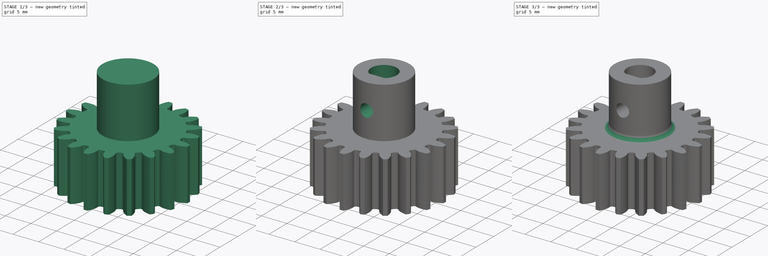
[diagram: build sequence overview — one tinted view per stage of 3, left to right]
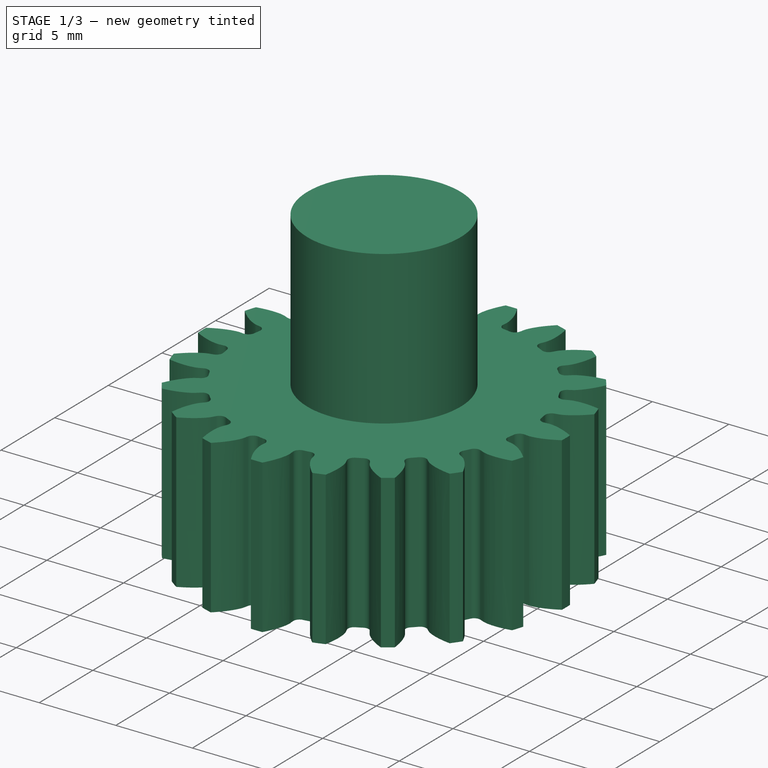
[diagram: stage 1 of 3 — iso view after this stage's code; geometry added in this stage tinted green]
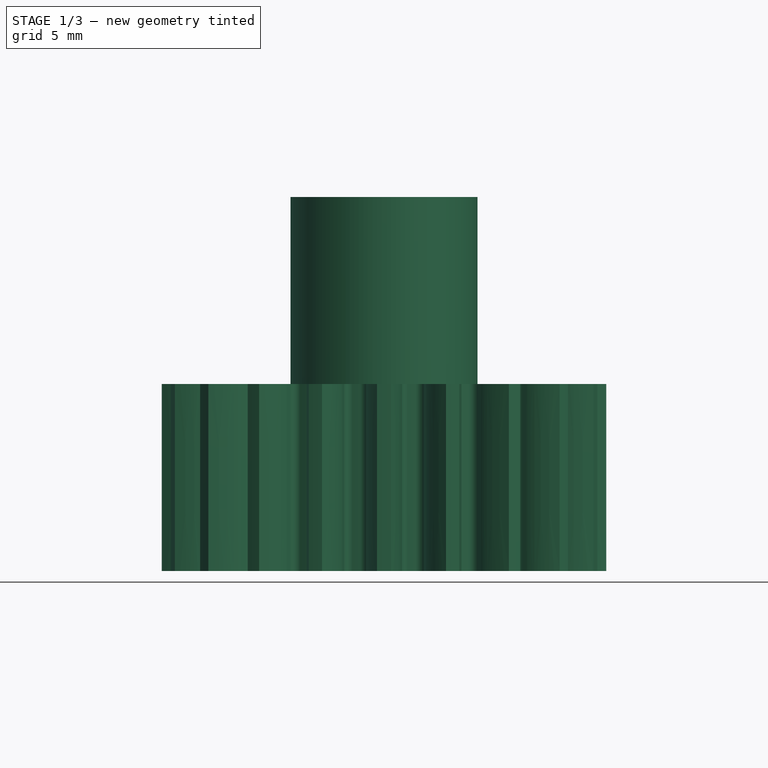
[diagram: stage 1 of 3 — front view after this stage's code; geometry added in this stage tinted green]
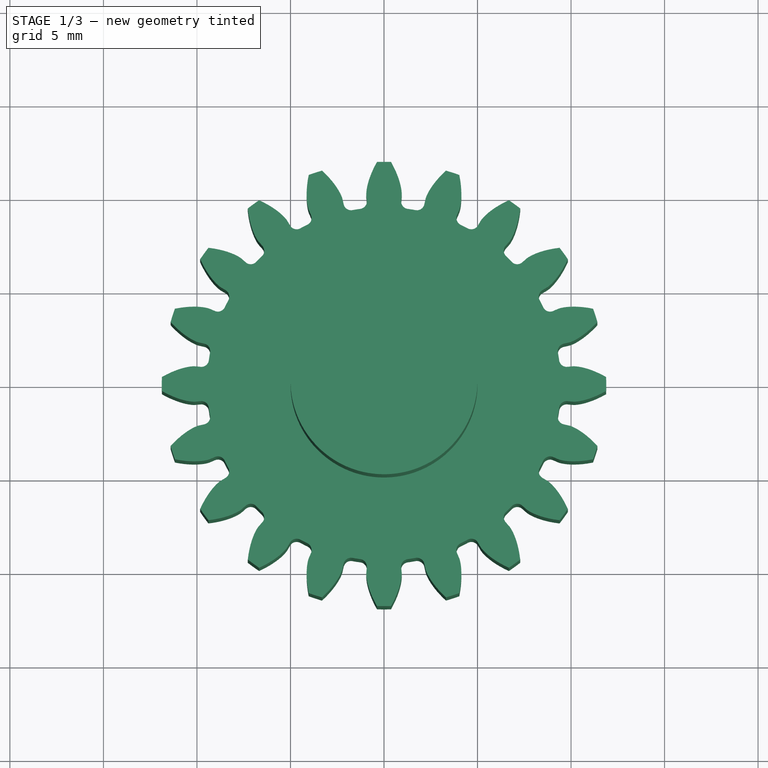
[diagram: stage 1 of 3 — top view after this stage's code; geometry added in this stage tinted green]
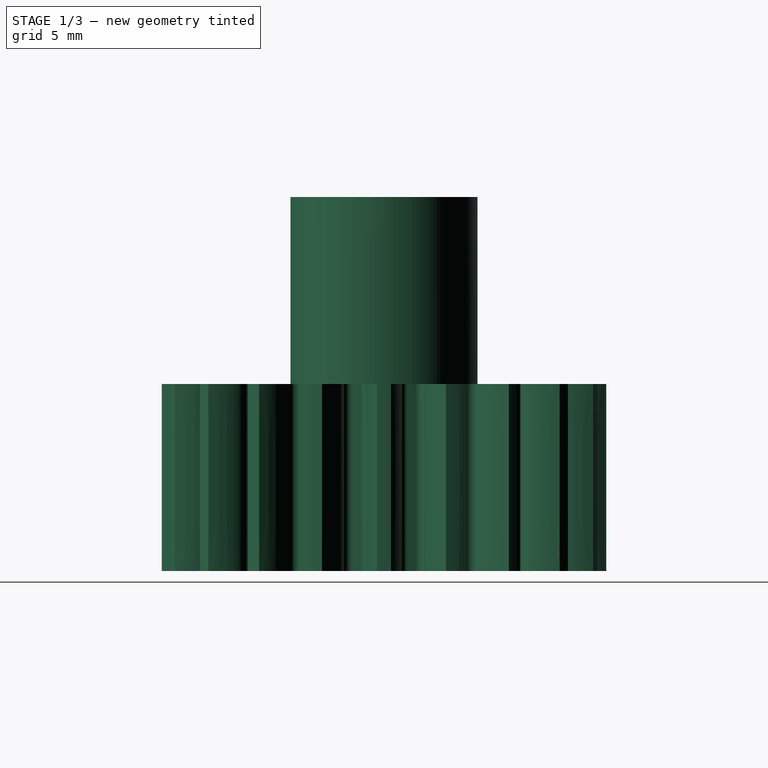
[diagram: stage 1 of 3 — right view after this stage's code; geometry added in this stage tinted green]
FCSTD DOCUMENT  (FreeCAD 0.19R18353 (Git))
Label: GearWheel_20_001
License: CreativeCommons Attribution
LicenseURL: http://creativecommons.org/licenses/by/4.0/
objects: Sketcher::SketchObject×4, PartDesign::Pocket×3, PartDesign::Pad×2, Part::Part2DObjectPython×1, PartDesign::Fillet×1, PartDesign::Body×1, App::MeasureDistance×1
note: 17 computed .brp shape members not serialized (recipe doc carries the construction recipe); baked Part::Feature solids carry a one-line shape summary decoded from their .brp

FEATURE [Part::Part2DObjectPython] InvoluteGear  # Draft 2D object (typed FeaturePython)
  ExternalGear = true
  HighPrecision = true
  Modules = 1.08
  NumberOfTeeth = 20
  PressureAngle = 20
FEATURE [PartDesign::Pad] Pad
  Length = 10
  Length2 = 100
  Profile = -> InvoluteGear
  Refine = true
  Reversed = true
  Type = 0
FEATURE [Sketcher::SketchObject] Sketch
  MapMode = 5
  Support = -> [XY_Plane]
  expr: Constraints[5] = 5 / 2 - 5 / 10
  sketch-geometry (3):
    g0: ArcOfCircle [constr] CenterX=0 CenterY=0 CenterZ=0 NormalX=0 NormalY=0 NormalZ=1 AngleXU=0 Radius=2.5 StartAngle=5.35589 EndAngle=10.3521
    g1: LineSegment [constr] StartX=-1.5 StartY=-2 StartZ=0 EndX=1.5 EndY=-2 EndZ=0
    g2: Circle CenterX=0 CenterY=0 CenterZ=0 NormalX=0 NormalY=0 NormalZ=1 AngleXU=0 Radius=5
  constraints (8):
    c: Coincident(g0,g-1)
    c: Coincident(g1,g0)
    c: Coincident(g1,g0)
    c: Horizontal(g1)
    c: Diameter(g0) = 5
    c: DistanceY(g0,g0) = 2
    c: Diameter(g2) = 10
    c: Coincident(g2,g-1)
FEATURE [PartDesign::Pad] Pad001
  BaseFeature = -> Pad
  Length = 10
  Length2 = 100
  Profile = -> Sketch
  Refine = true
  Type = 0
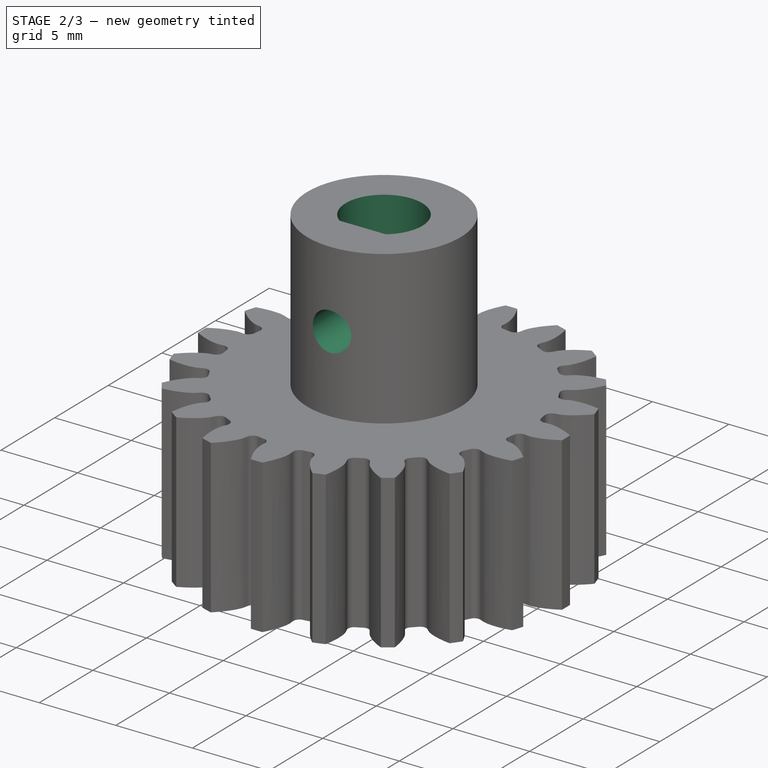
[diagram: stage 2 of 3 — iso view after this stage's code; geometry added in this stage tinted green]
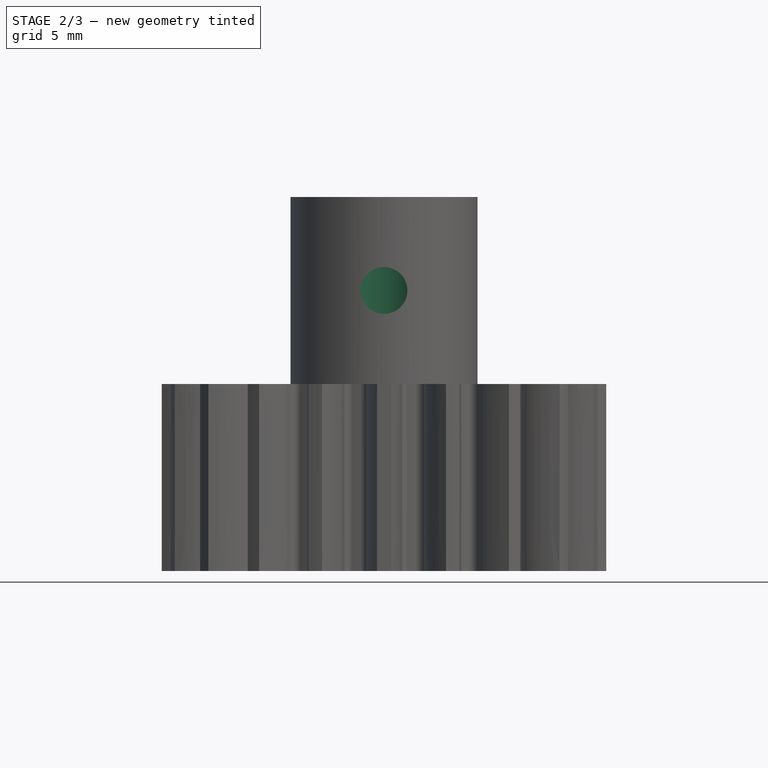
[diagram: stage 2 of 3 — front view after this stage's code; geometry added in this stage tinted green]
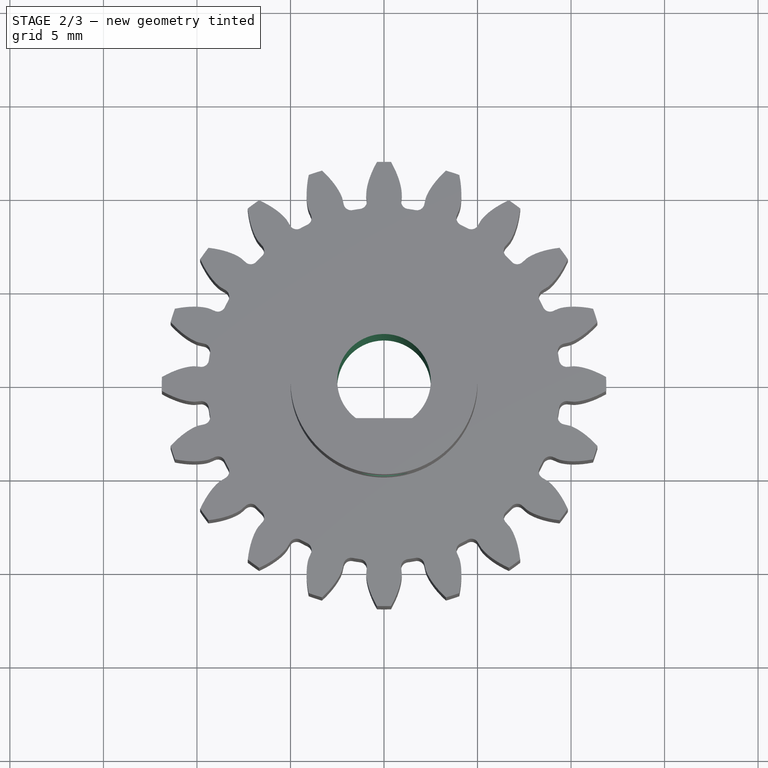
[diagram: stage 2 of 3 — top view after this stage's code; geometry added in this stage tinted green]
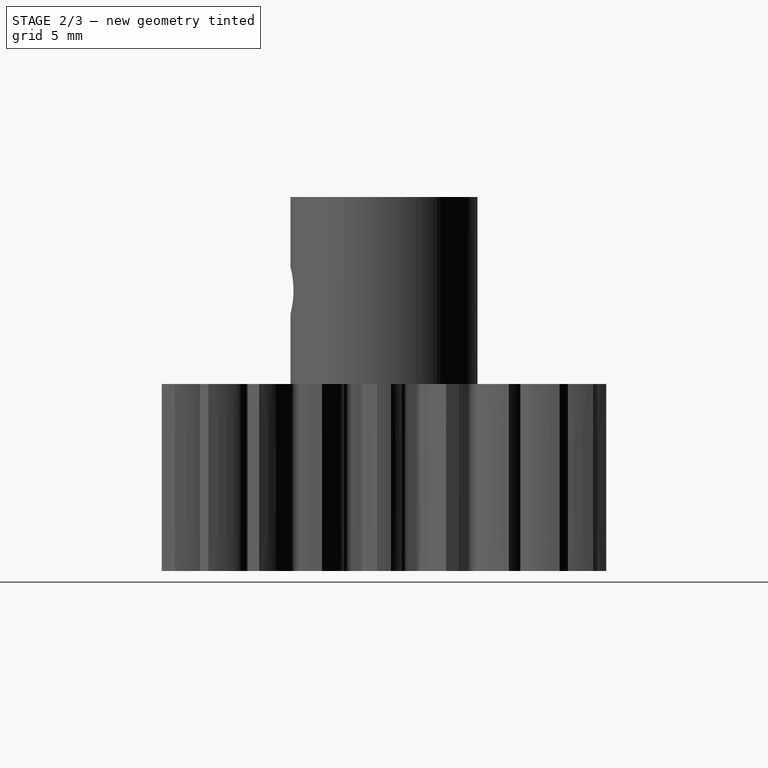
[diagram: stage 2 of 3 — right view after this stage's code; geometry added in this stage tinted green]
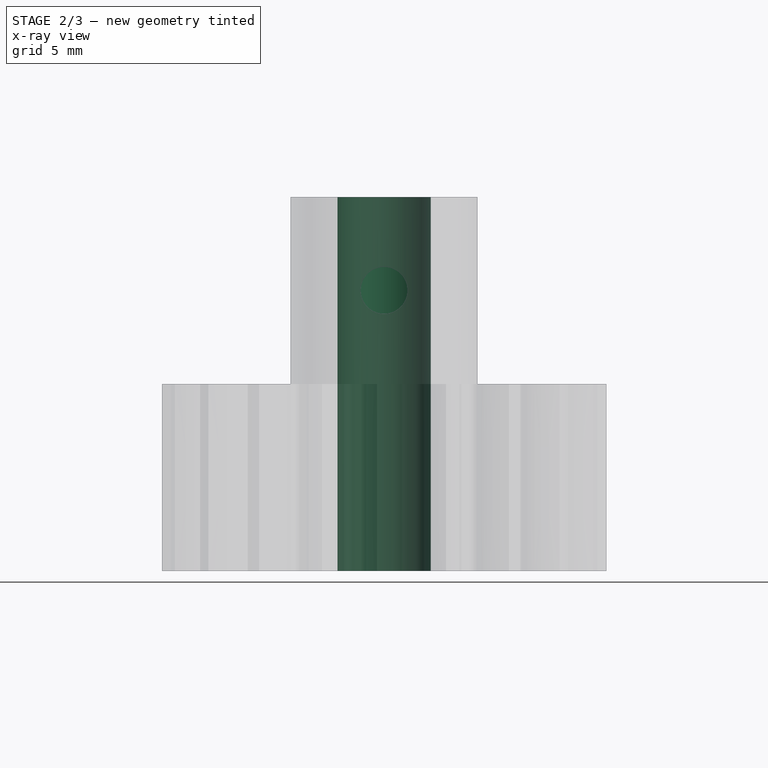
[diagram: stage 2 of 3 — x-ray composite at the front view; earlier geometry ghosted, this stage's added geometry solid]
FEATURE [Sketcher::SketchObject] Sketch001
  MapMode = 5
  Support = -> [XY_Plane]
  expr: Constraints[5] = 5 / 2 - 5 / 10
  sketch-geometry (2):
    g0: ArcOfCircle CenterX=0 CenterY=0 CenterZ=0 NormalX=0 NormalY=0 NormalZ=1 AngleXU=0 Radius=2.5 StartAngle=5.35589 EndAngle=10.3521
    g1: LineSegment StartX=-1.5 StartY=-2 StartZ=0 EndX=1.5 EndY=-2 EndZ=0
  constraints (6):
    c: Diameter(g0) = 5
    c: Coincident(g-1,g0)
    c: Horizontal(g1)
    c: Coincident(g0,g1)
    c: Coincident(g0,g1)
    c: DistanceY(g0,g0) = 2
FEATURE [PartDesign::Pocket] Pocket
  BaseFeature = -> Pad001
  Length = 5
  Length2 = 100
  Midplane = true
  Profile = -> Sketch001
  Refine = true
  Type = 1
FEATURE [Sketcher::SketchObject] Sketch002
  MapMode = 5
  Placement = pos=(0,0,0) rot=(1,0,0;1.5708rad)
  Support = -> [XZ_Plane]
  sketch-geometry (1):
    g0: Circle CenterX=0 CenterY=5 CenterZ=0 NormalX=0 NormalY=0 NormalZ=1 AngleXU=0 Radius=1.25
  constraints (3):
    c: Diameter(g0) = 2.5
    c: DistanceY(g-1,g0) = 5
    c: PointOnObject(g0,g-2)
FEATURE [PartDesign::Pocket] Pocket001
  BaseFeature = -> Pocket
  Length = 5
  Length2 = 100
  Profile = -> Sketch002
  Refine = true
  Reversed = true
  Type = 1
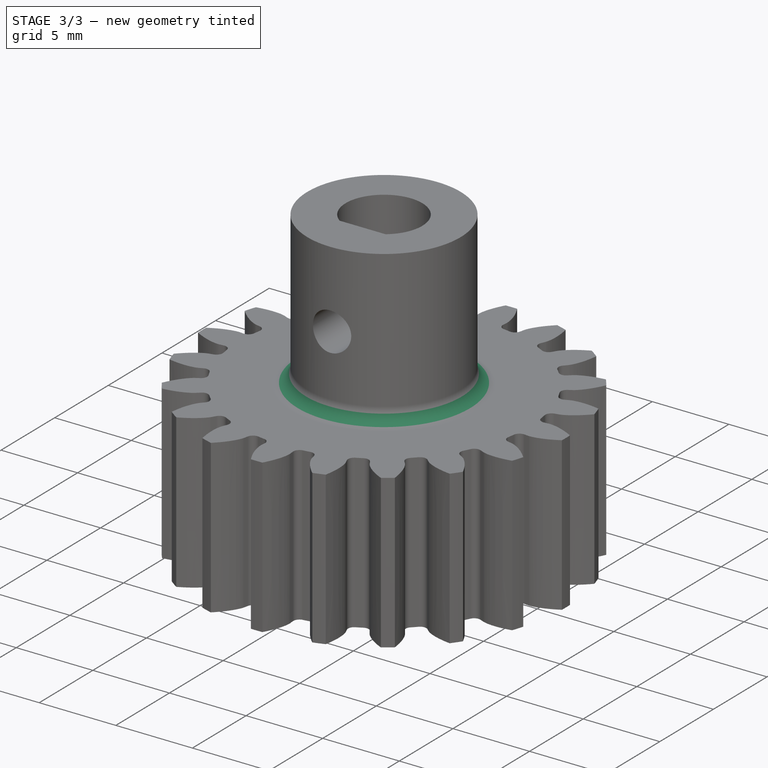
[diagram: stage 3 of 3 — iso view after this stage's code; geometry added in this stage tinted green]
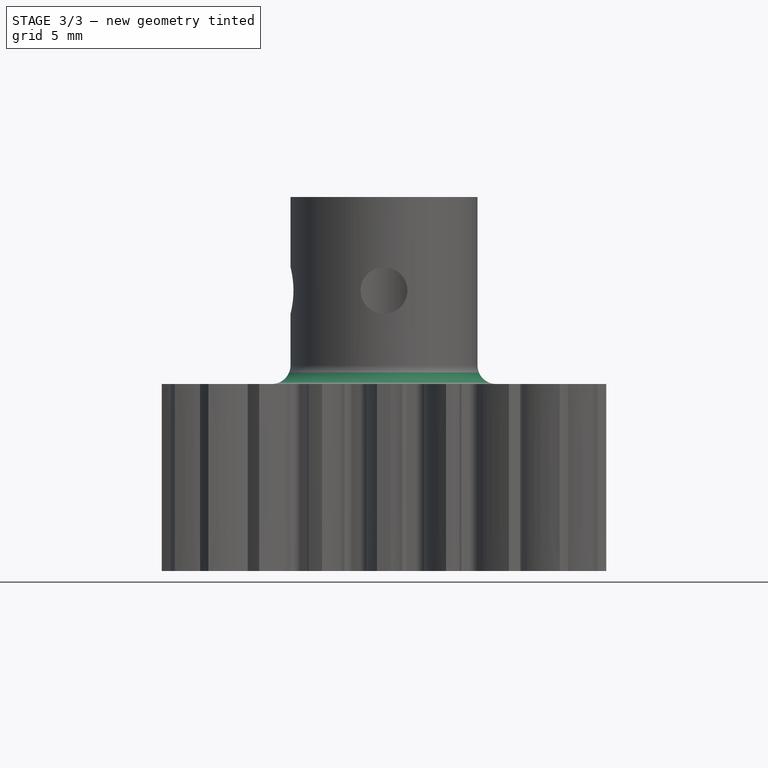
[diagram: stage 3 of 3 — front view after this stage's code; geometry added in this stage tinted green]
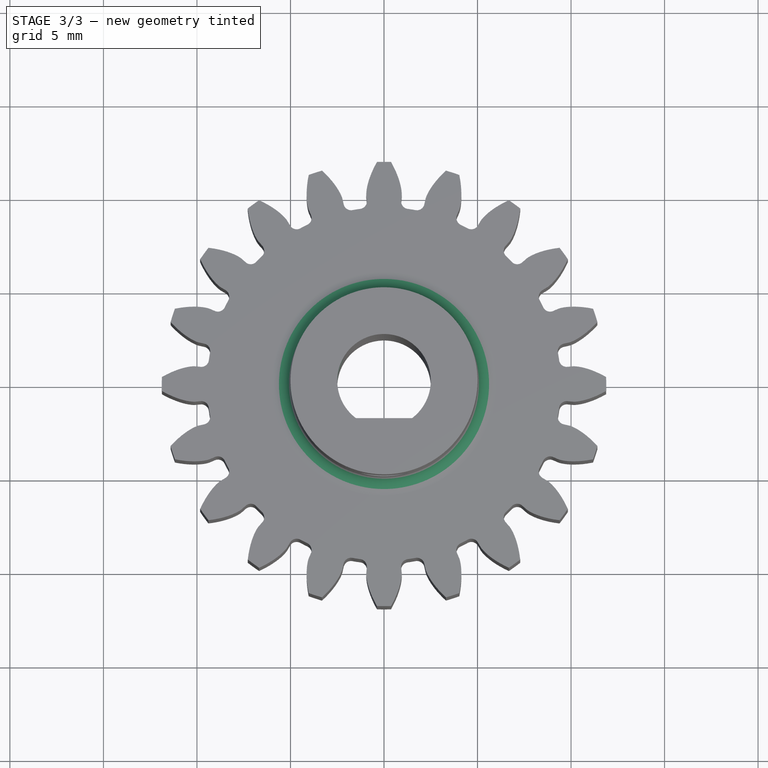
[diagram: stage 3 of 3 — top view after this stage's code; geometry added in this stage tinted green]
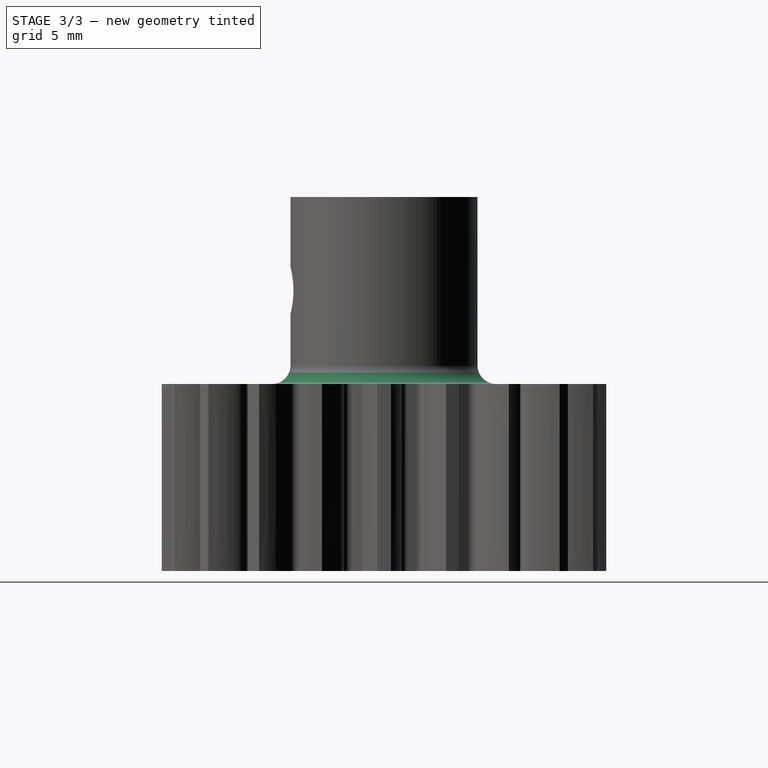
[diagram: stage 3 of 3 — right view after this stage's code; geometry added in this stage tinted green]
FEATURE [Sketcher::SketchObject] Sketch003
  MapMode = 5
  Placement = pos=(0,0,0) rot=(0.57735,0.57735,0.57735;2.0944rad)
  Support = -> [YZ_Plane]
  sketch-geometry (1):
    g0: Circle CenterX=0 CenterY=5 CenterZ=0 NormalX=0 NormalY=0 NormalZ=1 AngleXU=0 Radius=1.25
  constraints (3):
    c: Diameter(g0) = 2.5
    c: DistanceY(g-1,g0) = 5
    c: PointOnObject(g0,g-2)
FEATURE [PartDesign::Pocket] Pocket002
  BaseFeature = -> Pocket001
  Length = 5
  Length2 = 100
  Profile = -> Sketch003
  Refine = true
  Type = 1
FEATURE [PartDesign::Fillet] Fillet
  Base = -> Pocket002 [Edge208]
  BaseFeature = -> Pocket002
  Radius = 1
FEATURE [PartDesign::Body] Body
  Group = -> [InvoluteGear,Pad,Sketch,Pad001,Sketch001,Pocket,Sketch002,Pocket001,Sketch003,Pocket002,Fillet]
  Origin = -> Origin
  Tip = -> Fillet
FEATURE [App::MeasureDistance] Distance  label="Distance: 23,76 mm"
  Distance = 23.7624
  P1 = (-11.8753,-0.374725,0)
  P2 = (11.8753,0.374725,0)
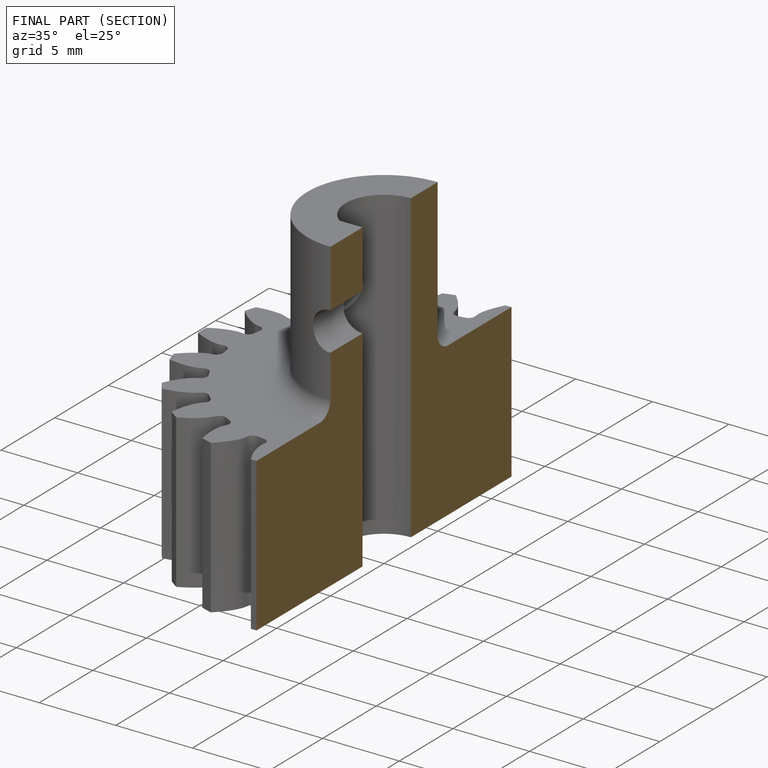
[diagram: finished part — half-section view (interior)]
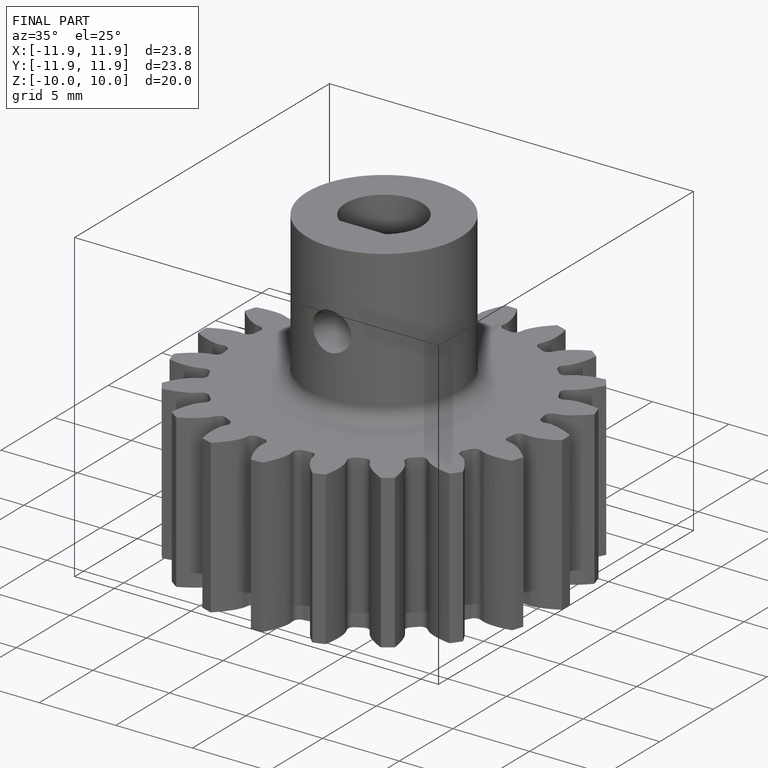
[diagram: finished part — iso view with bounding-box wireframe]
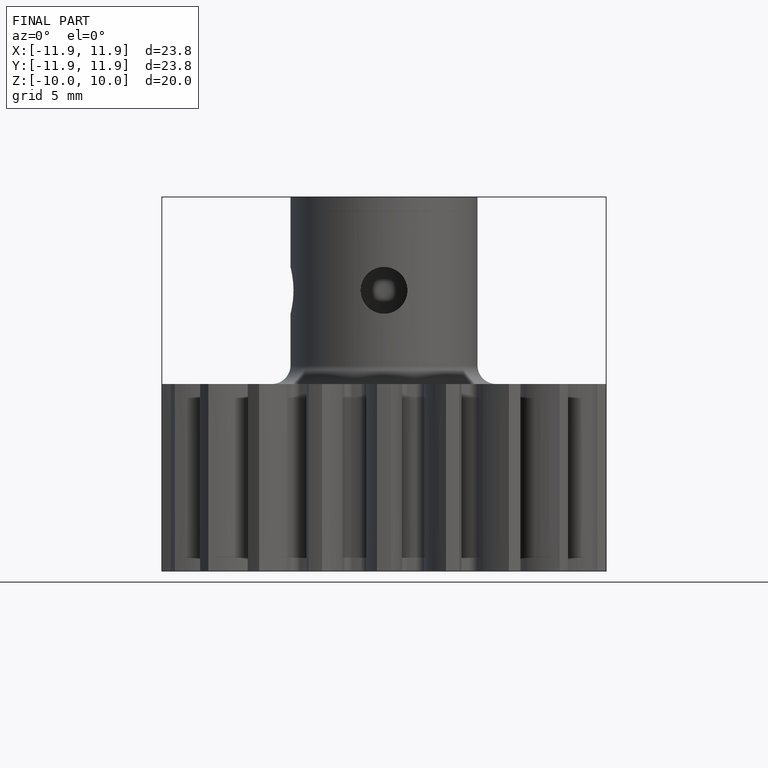
[diagram: finished part — front view with bounding-box wireframe]
